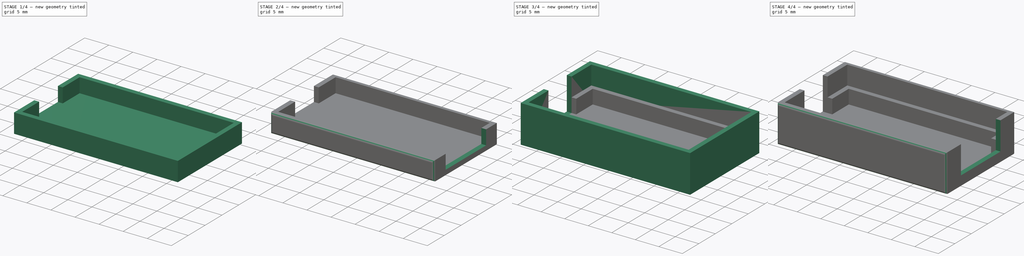
[diagram: build sequence overview — one tinted view per stage of 4, left to right]
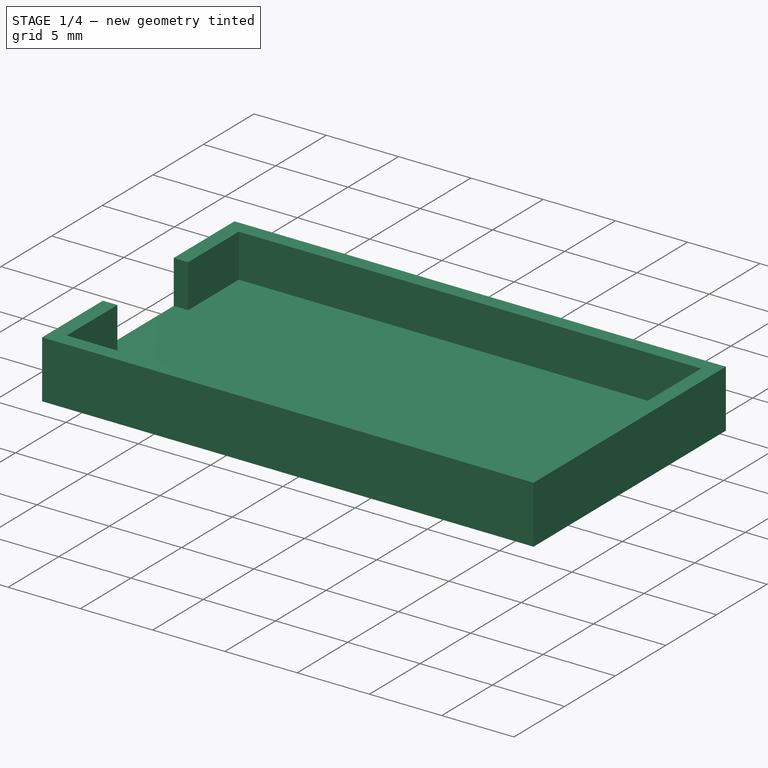
[diagram: stage 1 of 4 — iso view after this stage's code; geometry added in this stage tinted green]
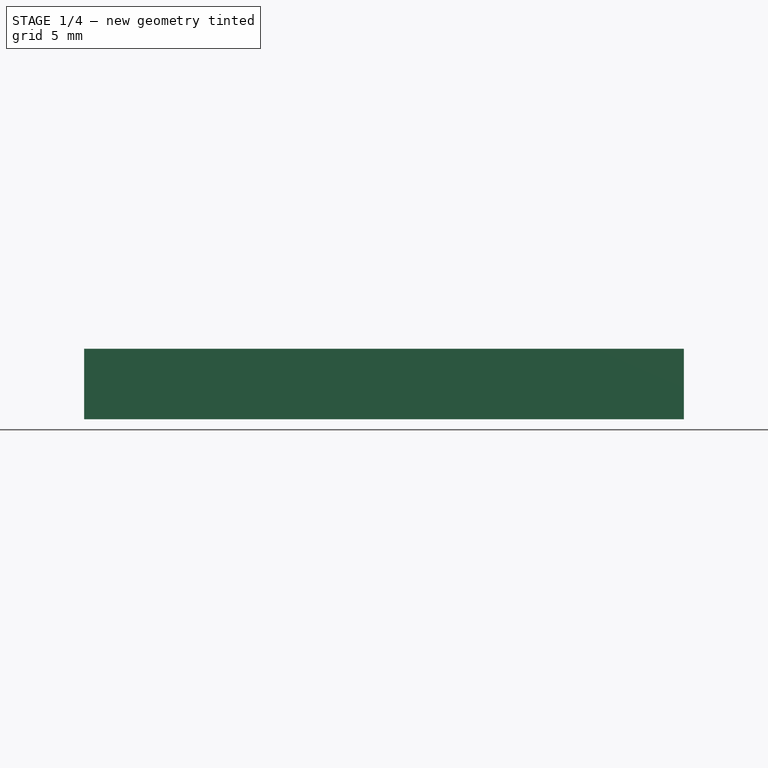
[diagram: stage 1 of 4 — front view after this stage's code; geometry added in this stage tinted green]
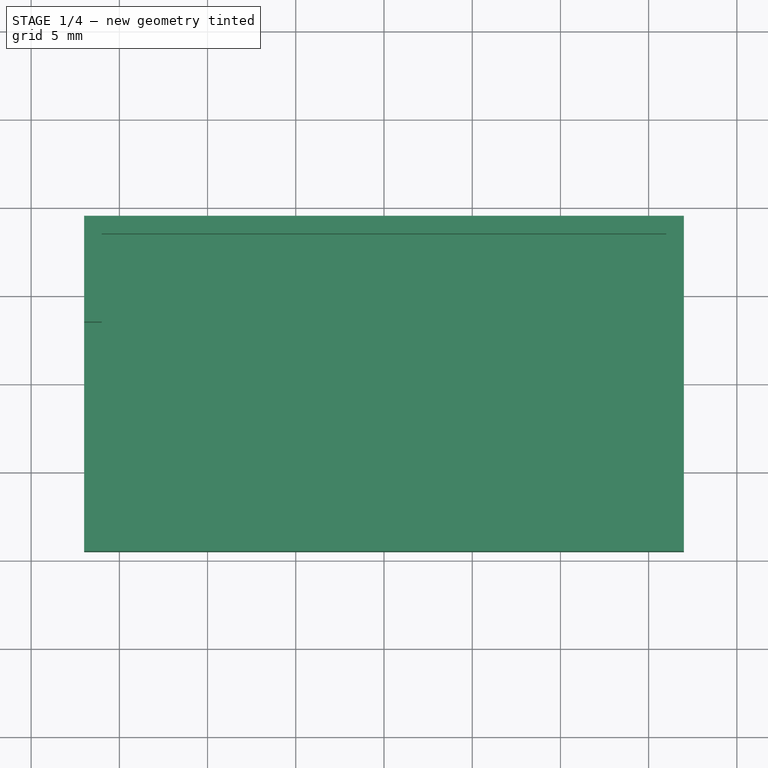
[diagram: stage 1 of 4 — top view after this stage's code; geometry added in this stage tinted green]
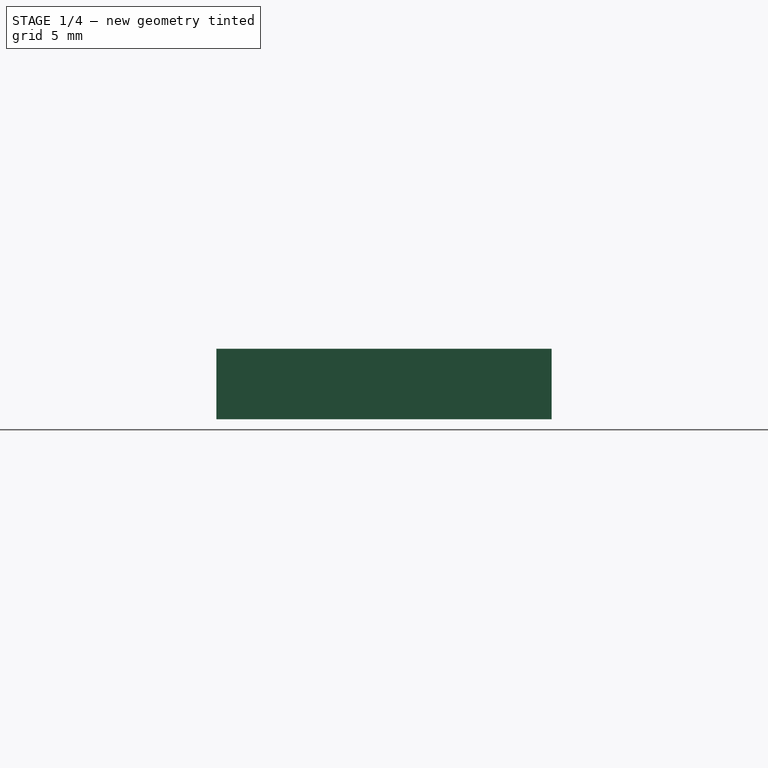
[diagram: stage 1 of 4 — right view after this stage's code; geometry added in this stage tinted green]
FCSTD DOCUMENT  (FreeCAD 0.18R16093 +53 (Git))
Label: case
License: All rights reserved
LicenseURL: http://en.wikipedia.org/wiki/All_rights_reserved
objects: Sketcher::SketchObject×9, PartDesign::Pocket×7, PartDesign::Fillet×4, PartDesign::Pad×2, PartDesign::Body×2
note: 33 computed .brp shape members not serialized (recipe doc carries the construction recipe); baked Part::Feature solids carry a one-line shape summary decoded from their .brp

FEATURE [PartDesign::Body] Body  label="Case Bottom"
  Group = -> [Sketch,Pad,Sketch001,Pocket,Sketch002,Pocket001,Sketch003,Pocket002,Fillet,Fillet001]
  Origin = -> Origin
  Tip = -> Fillet001
FEATURE [Sketcher::SketchObject] Sketch004
  MapMode = 5
  Support = -> [XY_Plane002]
  sketch-geometry (4):
    g0: LineSegment StartX=-17 StartY=-9.5 StartZ=0 EndX=17 EndY=-9.5 EndZ=0
    g1: LineSegment StartX=17 StartY=-9.5 StartZ=0 EndX=17 EndY=9.5 EndZ=0
    g2: LineSegment StartX=17 StartY=9.5 StartZ=0 EndX=-17 EndY=9.5 EndZ=0
    g3: LineSegment StartX=-17 StartY=9.5 StartZ=0 EndX=-17 EndY=-9.5 EndZ=0
  constraints (12):
    c: Coincident(g0,g1)
    c: Coincident(g1,g2)
    c: Coincident(g2,g3)
    c: Coincident(g3,g0)
    c: Horizontal(g0)
    c: Horizontal(g2)
    c: Vertical(g1)
    c: Vertical(g3)
    c: DistanceY(g1,g1) = 19
    c: DistanceX(g0,g0) = 34
    c: DistanceX(g1) = 17
    c: DistanceY(g1) = 9.5
FEATURE [PartDesign::Pad] Pad001
  Length = 4
  Length2 = 100
  Profile = -> Sketch004
  Type = 0
FEATURE [Sketcher::SketchObject] Sketch006
  MapMode = 5
  Placement = pos=(0,0,4) rot=(0,0,1;0rad)
  Support = -> [Pad001]
  sketch-geometry (4):
    g0: LineSegment StartX=-16 StartY=8.5 StartZ=0 EndX=16 EndY=8.5 EndZ=0
    g1: LineSegment StartX=16 StartY=8.5 StartZ=0 EndX=16 EndY=-8.5 EndZ=0
    g2: LineSegment StartX=16 StartY=-8.5 StartZ=0 EndX=-16 EndY=-8.5 EndZ=0
    g3: LineSegment StartX=-16 StartY=-8.5 StartZ=0 EndX=-16 EndY=8.5 EndZ=0
  constraints (12):
    c: Coincident(g0,g1)
    c: Coincident(g1,g2)
    c: Coincident(g2,g3)
    c: Coincident(g3,g0)
    c: Horizontal(g0)
    c: Horizontal(g2)
    c: Vertical(g1)
    c: Vertical(g3)
    c: DistanceX(g0) = -16
    c: DistanceY(g0) = 8.5
    c: DistanceX(g0,g0) = 32
    c: DistanceY(g1,g1) = 17
FEATURE [PartDesign::Pocket] Pocket003
  BaseFeature = -> Pad001
  Length = 3
  Length2 = 100
  Profile = -> Sketch006
  Type = 0
FEATURE [Sketcher::SketchObject] Sketch005
  MapMode = 5
  Placement = pos=(0,0,4) rot=(0,0,1;0rad)
  Support = -> [Pocket003]
  sketch-geometry (4):
    g0: LineSegment StartX=-17 StartY=3.5 StartZ=0 EndX=-16 EndY=3.5 EndZ=0
    g1: LineSegment StartX=-16 StartY=3.5 StartZ=0 EndX=-16 EndY=-3.5 EndZ=0
    g2: LineSegment StartX=-16 StartY=-3.5 StartZ=0 EndX=-17 EndY=-3.5 EndZ=0
    g3: LineSegment StartX=-17 StartY=-3.5 StartZ=0 EndX=-17 EndY=3.5 EndZ=0
  constraints (12):
    c: Coincident(g0,g1)
    c: Coincident(g1,g2)
    c: Coincident(g2,g3)
    c: Coincident(g3,g0)
    c: Horizontal(g0)
    c: Horizontal(g2)
    c: Vertical(g1)
    c: Vertical(g3)
    c: DistanceX(g1) = -16
    c: DistanceY(g1) = -3.5
    c: DistanceY(g3,g3) = 7
    c: DistanceX(g0,g0) = 1
FEATURE [PartDesign::Pocket] Pocket004
  BaseFeature = -> Pocket003
  Length = 3
  Length2 = 100
  Profile = -> Sketch005
  Type = 0
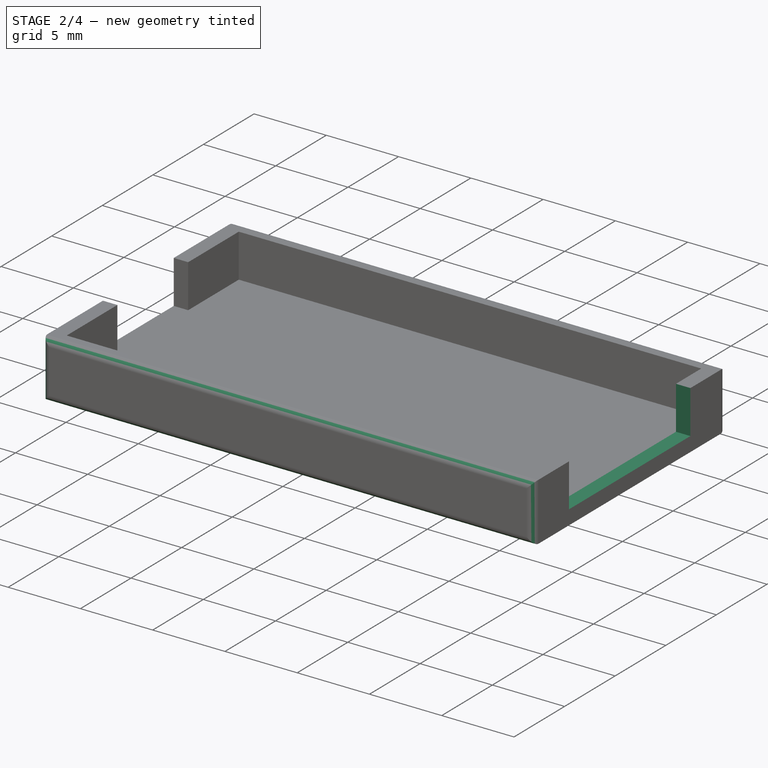
[diagram: stage 2 of 4 — iso view after this stage's code; geometry added in this stage tinted green]
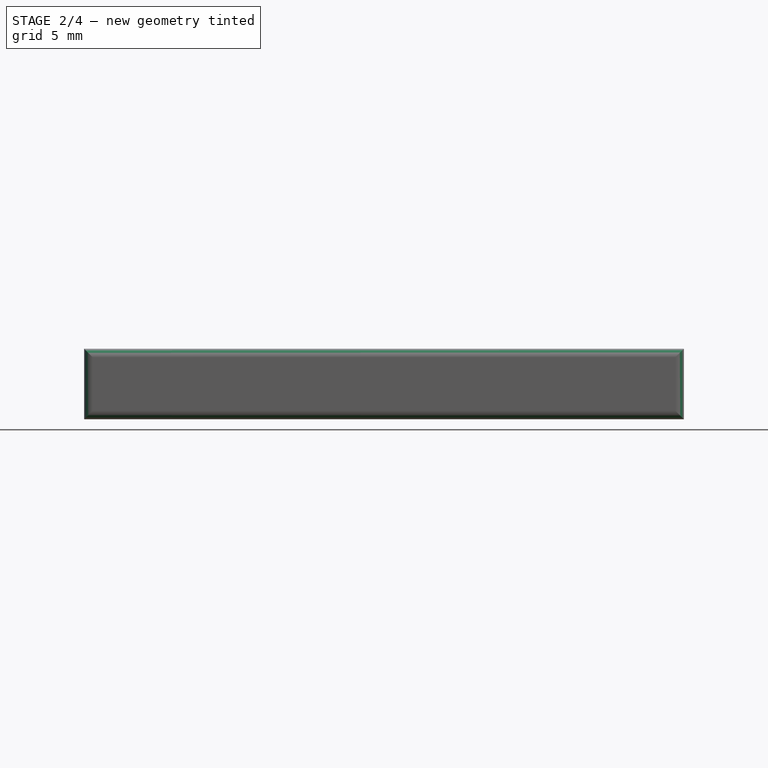
[diagram: stage 2 of 4 — front view after this stage's code; geometry added in this stage tinted green]
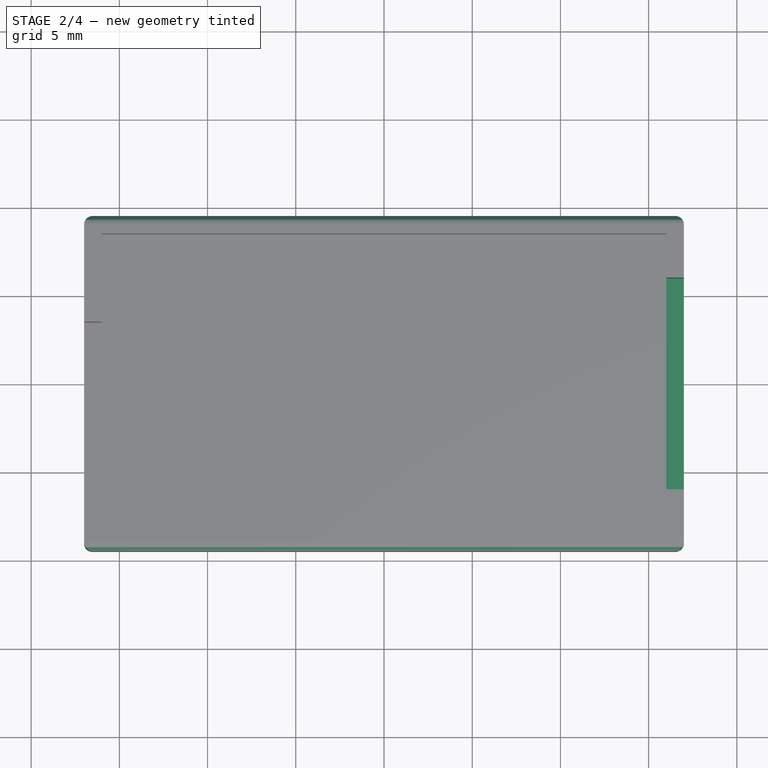
[diagram: stage 2 of 4 — top view after this stage's code; geometry added in this stage tinted green]
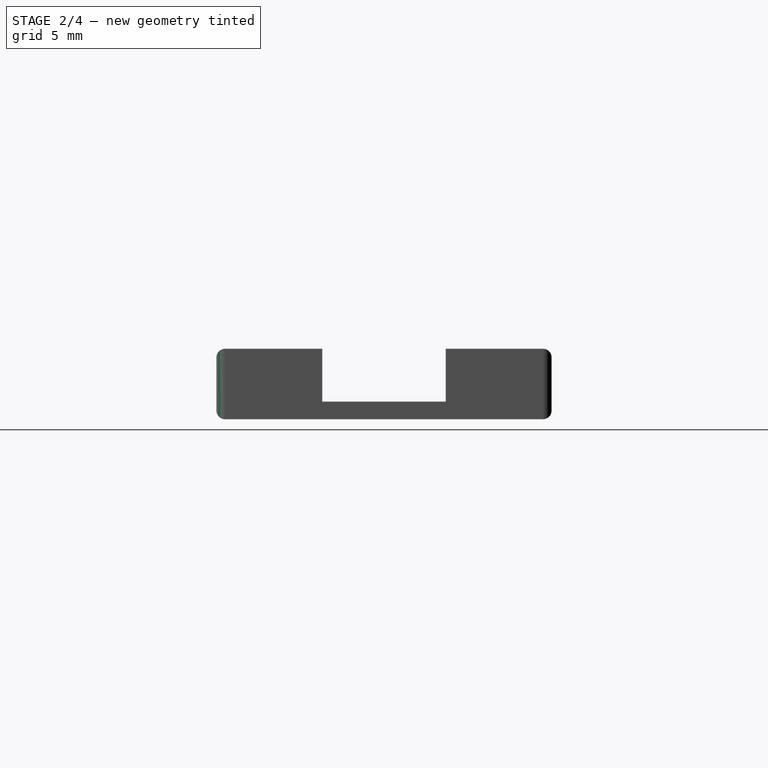
[diagram: stage 2 of 4 — right view after this stage's code; geometry added in this stage tinted green]
FEATURE [Sketcher::SketchObject] Sketch007
  MapMode = 5
  Placement = pos=(0,0,4) rot=(0,0,1;0rad)
  Support = -> [Pocket004]
  sketch-geometry (4):
    g0: LineSegment StartX=16 StartY=6 StartZ=0 EndX=17 EndY=6 EndZ=0
    g1: LineSegment StartX=17 StartY=6 StartZ=0 EndX=17 EndY=-6 EndZ=0
    g2: LineSegment StartX=17 StartY=-6 StartZ=0 EndX=16 EndY=-6 EndZ=0
    g3: LineSegment StartX=16 StartY=-6 StartZ=0 EndX=16 EndY=6 EndZ=0
  constraints (12):
    c: Coincident(g0,g1)
    c: Coincident(g1,g2)
    c: Coincident(g2,g3)
    c: Coincident(g3,g0)
    c: Horizontal(g0)
    c: Horizontal(g2)
    c: Vertical(g1)
    c: Vertical(g3)
    c: DistanceX(g1) = 17
    c: DistanceY(g1) = -6
    c: DistanceX(g0,g0) = 1
    c: DistanceY(g3,g3) = 12
FEATURE [PartDesign::Pocket] Pocket005
  BaseFeature = -> Pocket004
  Length = 3
  Length2 = 100
  Profile = -> Sketch007
  Type = 0
FEATURE [PartDesign::Fillet] Fillet002
  Base = -> Pocket005 [Face1]
  BaseFeature = -> Pocket005
  Radius = 0.5
FEATURE [PartDesign::Fillet] Fillet003
  Base = -> Fillet002 [Face10]
  BaseFeature = -> Fillet002
  Radius = 0.5
FEATURE [PartDesign::Body] Body002  label="Case Top"
  Group = -> [Sketch004,Pad001,Sketch006,Pocket003,Sketch005,Pocket004,Sketch007,Pocket005,Fillet002,Sketch008,Pocket006,Fillet003]
  Origin = -> Origin002
  Placement = pos=(0,30,0) rot=(0,0,1;0rad)
  Tip = -> Fillet003
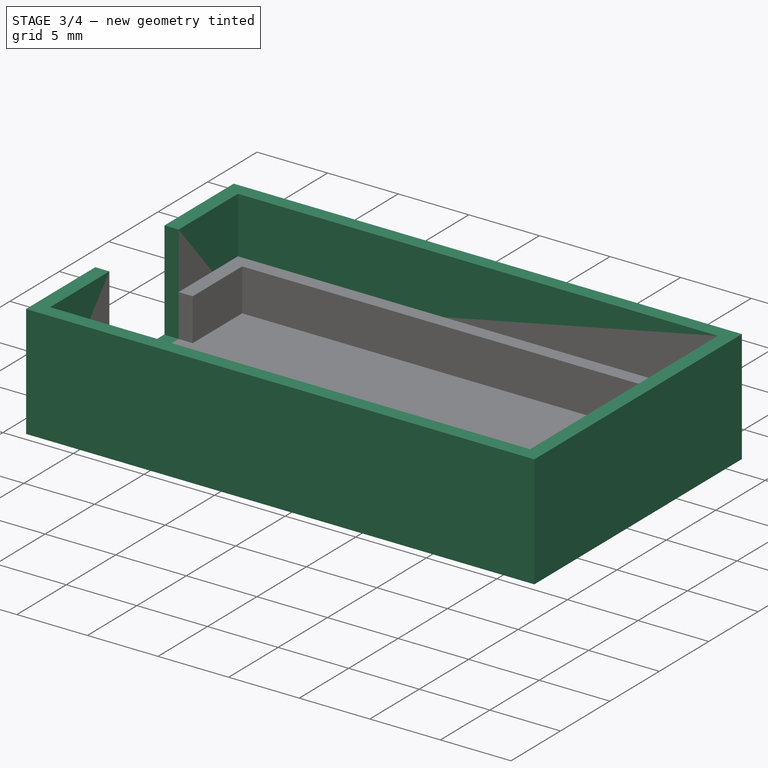
[diagram: stage 3 of 4 — iso view after this stage's code; geometry added in this stage tinted green]
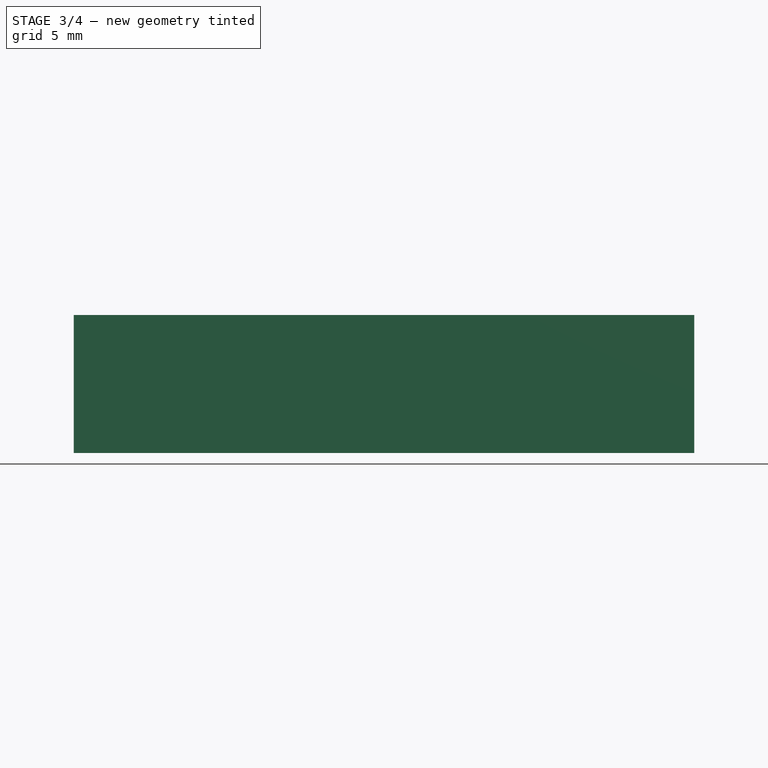
[diagram: stage 3 of 4 — front view after this stage's code; geometry added in this stage tinted green]
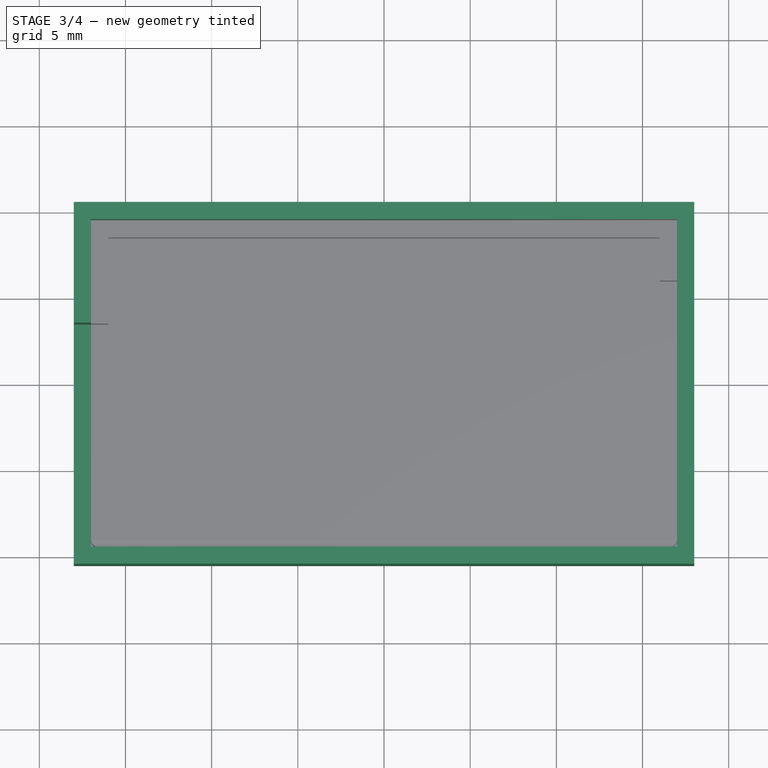
[diagram: stage 3 of 4 — top view after this stage's code; geometry added in this stage tinted green]
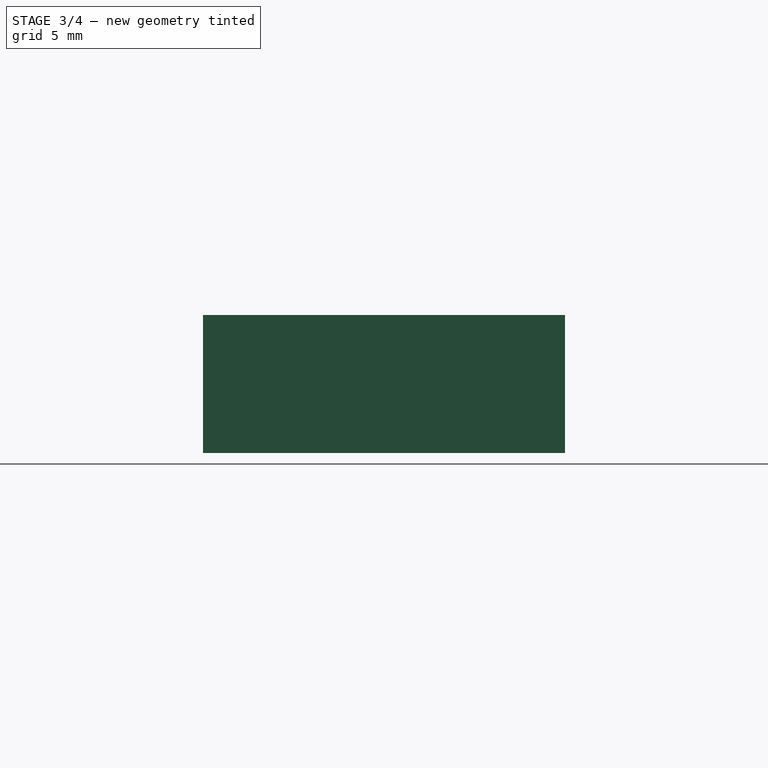
[diagram: stage 3 of 4 — right view after this stage's code; geometry added in this stage tinted green]
FEATURE [Sketcher::SketchObject] Sketch
  MapMode = 5
  Support = -> [XY_Plane]
  sketch-geometry (4):
    g0: LineSegment StartX=-18 StartY=-10.5 StartZ=0 EndX=18 EndY=-10.5 EndZ=0
    g1: LineSegment StartX=18 StartY=-10.5 StartZ=0 EndX=18 EndY=10.5 EndZ=0
    g2: LineSegment StartX=18 StartY=10.5 StartZ=0 EndX=-18 EndY=10.5 EndZ=0
    g3: LineSegment StartX=-18 StartY=10.5 StartZ=0 EndX=-18 EndY=-10.5 EndZ=0
  constraints (12):
    c: Coincident(g0,g1)
    c: Coincident(g1,g2)
    c: Coincident(g2,g3)
    c: Coincident(g3,g0)
    c: Horizontal(g0)
    c: Horizontal(g2)
    c: Vertical(g1)
    c: Vertical(g3)
    c: DistanceY(g1,g1) = 21
    c: DistanceX(g0,g0) = 36
    c: DistanceX(g1) = 18
    c: DistanceY(g1) = 10.5
FEATURE [PartDesign::Pad] Pad
  Length = 8
  Length2 = 100
  Profile = -> Sketch
  Type = 0
FEATURE [Sketcher::SketchObject] Sketch001
  MapMode = 5
  Placement = pos=(0,0,8) rot=(0,0,1;0rad)
  Support = -> [Pad]
  sketch-geometry (4):
    g0: LineSegment StartX=-17 StartY=9.5 StartZ=0 EndX=17 EndY=9.5 EndZ=0
    g1: LineSegment StartX=17 StartY=9.5 StartZ=0 EndX=17 EndY=-9.5 EndZ=0
    g2: LineSegment StartX=17 StartY=-9.5 StartZ=0 EndX=-17 EndY=-9.5 EndZ=0
    g3: LineSegment StartX=-17 StartY=-9.5 StartZ=0 EndX=-17 EndY=9.5 EndZ=0
  constraints (12):
    c: Coincident(g0,g1)
    c: Coincident(g1,g2)
    c: Coincident(g2,g3)
    c: Coincident(g3,g0)
    c: Horizontal(g0)
    c: Horizontal(g2)
    c: Vertical(g1)
    c: Vertical(g3)
    c: DistanceX(g0) = -17
    c: DistanceY(g0) = 9.5
    c: DistanceX(g0,g0) = 34
    c: DistanceY(g1,g1) = 19
FEATURE [PartDesign::Pocket] Pocket
  BaseFeature = -> Pad
  Length = 7
  Length2 = 100
  Profile = -> Sketch001
  Type = 0
FEATURE [Sketcher::SketchObject] Sketch002
  MapMode = 5
  Placement = pos=(0,0,8) rot=(0,0,1;0rad)
  Support = -> [Pocket]
  sketch-geometry (4):
    g0: LineSegment StartX=-18 StartY=3.5 StartZ=0 EndX=-17 EndY=3.5 EndZ=0
    g1: LineSegment StartX=-17 StartY=3.5 StartZ=0 EndX=-17 EndY=-3.5 EndZ=0
    g2: LineSegment StartX=-17 StartY=-3.5 StartZ=0 EndX=-18 EndY=-3.5 EndZ=0
    g3: LineSegment StartX=-18 StartY=-3.5 StartZ=0 EndX=-18 EndY=3.5 EndZ=0
  constraints (12):
    c: Coincident(g0,g1)
    c: Coincident(g1,g2)
    c: Coincident(g2,g3)
    c: Coincident(g3,g0)
    c: Horizontal(g0)
    c: Horizontal(g2)
    c: Vertical(g1)
    c: Vertical(g3)
    c: DistanceX(g1) = -17
    c: DistanceY(g1) = -3.5
    c: DistanceY(g3,g3) = 7
    c: DistanceX(g0,g0) = 1
FEATURE [PartDesign::Pocket] Pocket001
  BaseFeature = -> Pocket
  Length = 7
  Length2 = 100
  Profile = -> Sketch002
  Type = 0
FEATURE [Sketcher::SketchObject] Sketch008
  MapMode = 5
  Placement = pos=(0,0,1) rot=(0,0,1;0rad)
  Support = -> [Pocket005]
  sketch-geometry (4):
    g0: LineSegment StartX=-14 StartY=-6.5 StartZ=0 EndX=-12 EndY=-6.5 EndZ=0
    g1: LineSegment StartX=-12 StartY=-6.5 StartZ=0 EndX=-12 EndY=-9.5 EndZ=0
    g2: LineSegment StartX=-12 StartY=-9.5 StartZ=0 EndX=-14 EndY=-9.5 EndZ=0
    g3: LineSegment StartX=-14 StartY=-9.5 StartZ=0 EndX=-14 EndY=-6.5 EndZ=0
  constraints (12):
    c: Coincident(g0,g1)
    c: Coincident(g1,g2)
    c: Coincident(g2,g3)
    c: Coincident(g3,g0)
    c: Horizontal(g0)
    c: Horizontal(g2)
    c: Vertical(g1)
    c: Vertical(g3)
    c: DistanceX(g0,g0) = 2
    c: DistanceY(g1,g1) = 3
    c: DistanceX(g1,g-1) = 12
    c: DistanceY(g0,g-1) = 6.5
FEATURE [PartDesign::Pocket] Pocket006
  BaseFeature = -> Fillet002
  Length = 6
  Length2 = 100
  Midplane = true
  Profile = -> Sketch008
  Reversed = true
  Type = 0
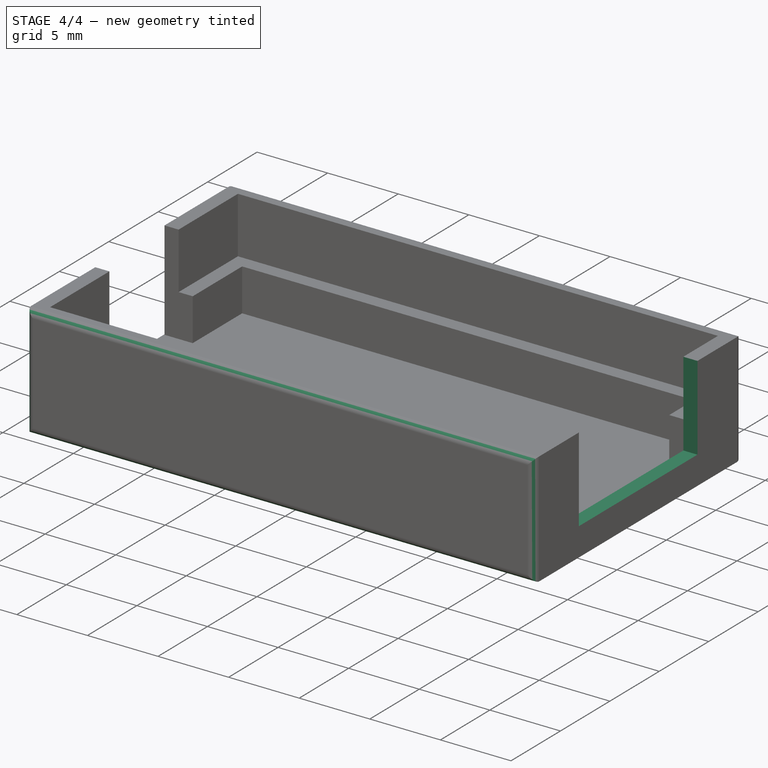
[diagram: stage 4 of 4 — iso view after this stage's code; geometry added in this stage tinted green]
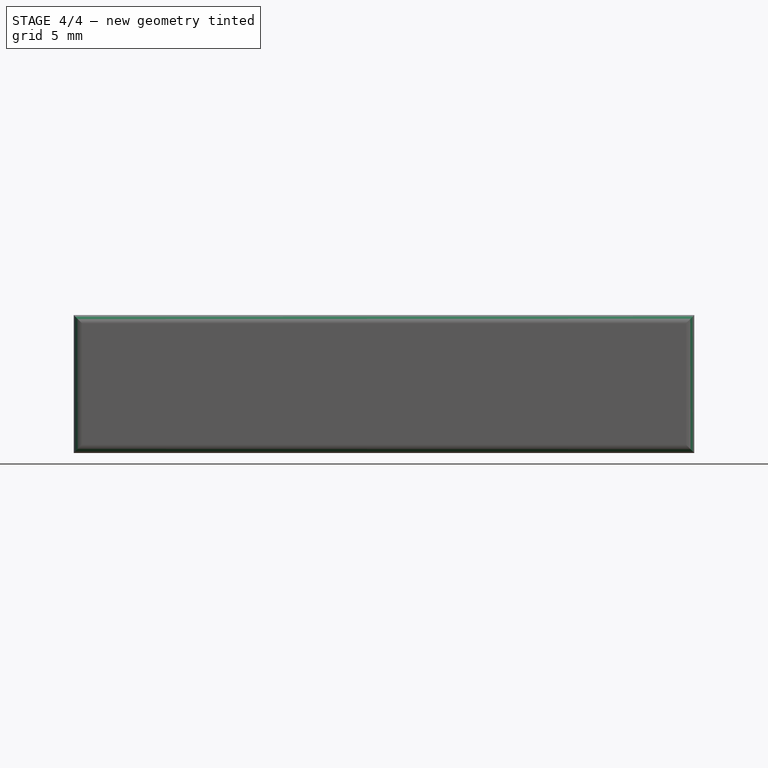
[diagram: stage 4 of 4 — front view after this stage's code; geometry added in this stage tinted green]
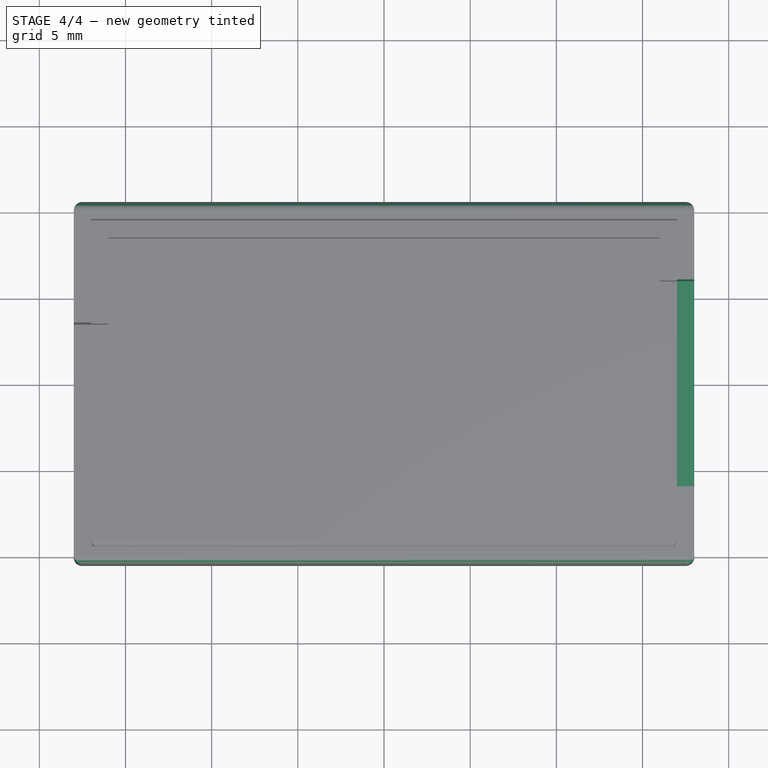
[diagram: stage 4 of 4 — top view after this stage's code; geometry added in this stage tinted green]
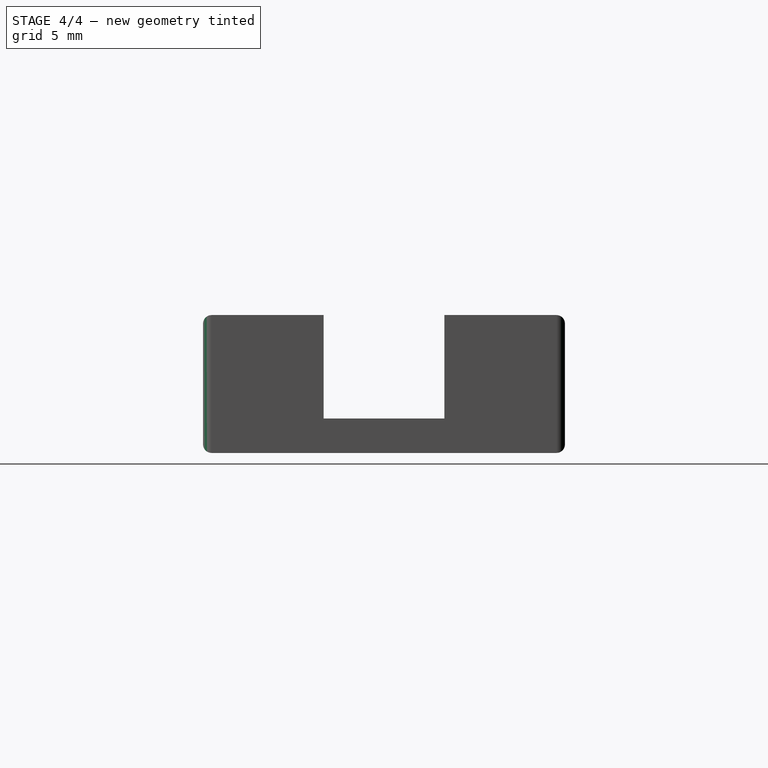
[diagram: stage 4 of 4 — right view after this stage's code; geometry added in this stage tinted green]
FEATURE [Sketcher::SketchObject] Sketch003
  MapMode = 5
  Placement = pos=(0,0,8) rot=(0,0,1;0rad)
  Support = -> [Pocket001]
  sketch-geometry (4):
    g0: LineSegment StartX=17 StartY=6 StartZ=0 EndX=18 EndY=6 EndZ=0
    g1: LineSegment StartX=18 StartY=6 StartZ=0 EndX=18 EndY=-6 EndZ=0
    g2: LineSegment StartX=18 StartY=-6 StartZ=0 EndX=17 EndY=-6 EndZ=0
    g3: LineSegment StartX=17 StartY=-6 StartZ=0 EndX=17 EndY=6 EndZ=0
  constraints (12):
    c: Coincident(g0,g1)
    c: Coincident(g1,g2)
    c: Coincident(g2,g3)
    c: Coincident(g3,g0)
    c: Horizontal(g0)
    c: Horizontal(g2)
    c: Vertical(g1)
    c: Vertical(g3)
    c: DistanceX(g1) = 18
    c: DistanceY(g1) = -6
    c: DistanceX(g0,g0) = 1
    c: DistanceY(g3,g3) = 12
FEATURE [PartDesign::Pocket] Pocket002
  BaseFeature = -> Pocket001
  Length = 6
  Length2 = 100
  Profile = -> Sketch003
  Type = 0
FEATURE [PartDesign::Fillet] Fillet
  Base = -> Pocket002 [Face1]
  BaseFeature = -> Pocket002
  Radius = 0.5
FEATURE [PartDesign::Fillet] Fillet001
  Base = -> Fillet [Face10]
  BaseFeature = -> Fillet
  Radius = 0.5
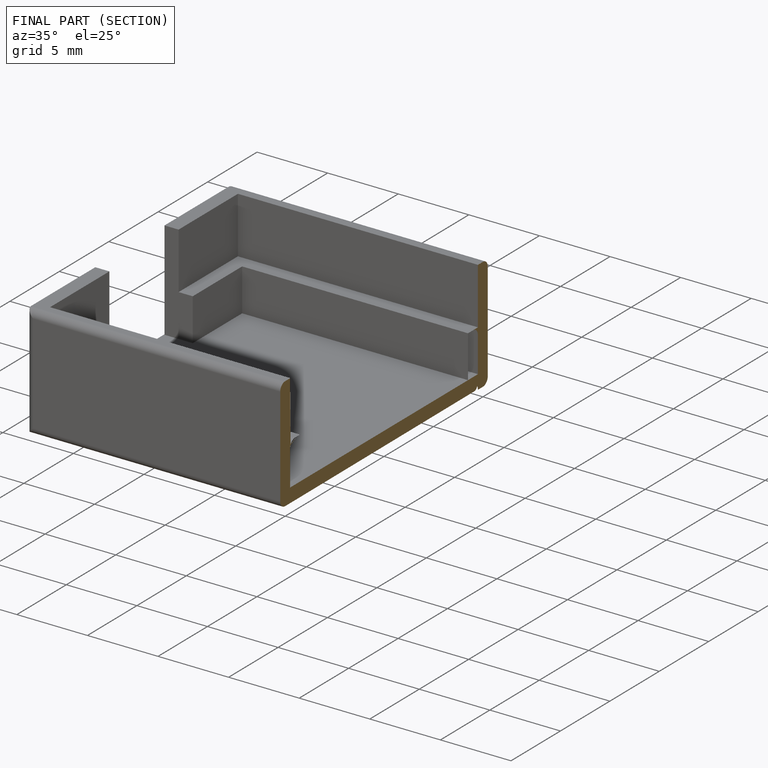
[diagram: finished part — half-section view (interior)]
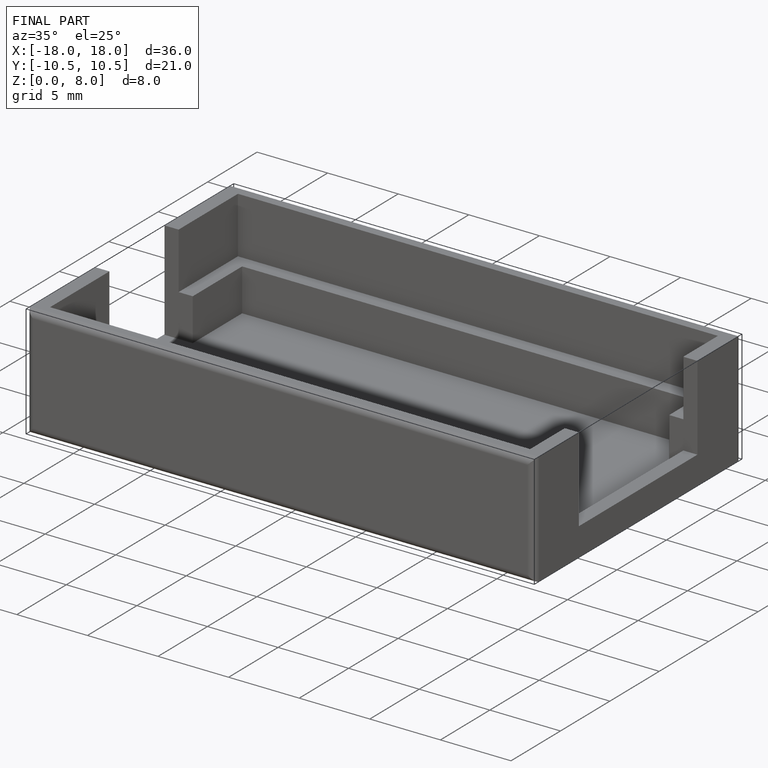
[diagram: finished part — iso view with bounding-box wireframe]
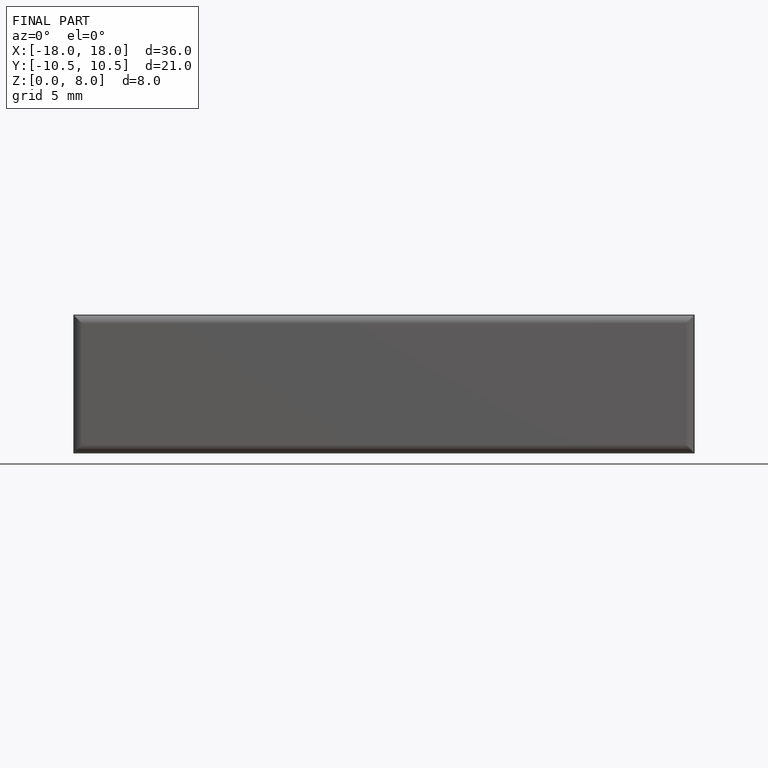
[diagram: finished part — front view with bounding-box wireframe]
